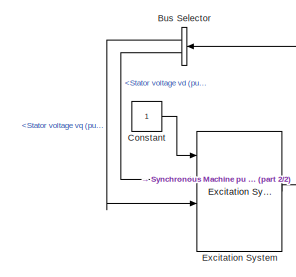
[diagram: root canvas - part 1/2, top left region]
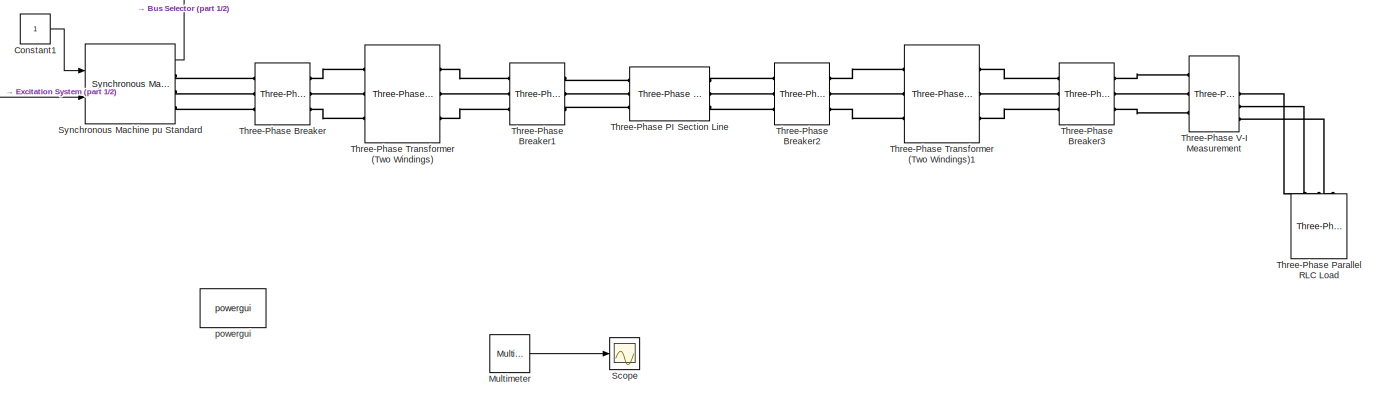
[diagram: root canvas - part 2/2, most of the canvas]
MODEL slx_87981afc190c
KIND model
BLOCK [BusSelector] Bus Selector
  OutputSignals = dq0 components.Stator voltage  vq (pu),dq0 components.Stator voltage  vd (pu)
  Ports = [1, 2]
BLOCK [Constant] Constant
BLOCK [Constant] Constant1
BLOCK [Reference] Excitation System  REF=sps_avr/Excitation System
  Ports = [4, 1]
  SourceBlock = sps_avr/Excitation System
  SourceType = Excitation System
  damp = [ 0.001, 0.1 ]
  exc = [ 1, 0 ]
  lim = [ -11.5, 11.5, 0 ]
  reg = [ 300, 0.001 ]
  sat = [ 0, 0 ]
  tgr = [ 0, 0 ]
  tr = 20e-3
  v0 = [1.0  1.28]
BLOCK [Reference] Multimeter  REF=powerlib/Measurements/Multimeter
  AxesSetting = [0,0.1,-100,100]
  Display = 1
  Gain = [1 1 1 1 1 1]
  L = 6
  OutputType = Magnitude
  PSBOutputType = 1
  PSBequivalent = 0
  PhasorSimulation = on
  Ports = [0, 1, 0, 0, 0, 1]
  SavedBlockNames = -11
  SourceBlock = powerlib/Measurements/Multimeter
  SourceType = MultimeterPSB
  sel = [1 2 3 4 5 6]
  yselected = {'Uag: Three-Phase Parallel RLC Load','Ubg: Three-Phase Parallel RLC Load','Ucg: Three-Phase Parallel RLC Load','Iag: Three-Phase Parallel RLC Load','Ibg: Three-Phase Parallel RLC Load','Icg: Three-Phase Parallel RLC Load'};
BLOCK [Scope] Scope
  DataFormat = StructureWithTime
  Floating = off
  NumInputPorts = 1
  Ports = [1]
  SampleTime = 0
  ShowLegends = off
BLOCK [Reference] Synchronous Machine pu Standard  REF=powerlib/Machines/Synchronous Machine
pu Standard
  BusType = swing
  InitialConditions = [ 0  0  0  0  0  0  0  0  1 ]
  IterativeModel = Trapezoidal non iterative
  LoadFlowParameters = [1,0,0,0,0]
  Mechanical = [ 3.7 0 20 ]
  MechanicalLoad = Mechanical power Pm
  NominalParameters = [ 30E6  138000   60]
  PLF = 0
  PolePairs = 20
  Ports = [2, 1, 0, 0, 0, 0, 3]
  Pref = 0
  PresetModel = No
  QLF = 0
  Qmax = inf
  Qmin = -inf
  Qref = 0
  Reactances1 = [ 1.81, 0.3, 0.23, 1.76, 0.65, 0.25, 0.15 ]
  Reactances2 = [ 1.305, 0.296, 0.252, 0.474,  0.243,  0.1 ]
  RotorType = Salient-pole
  Saturation = [0.6404,0.7127,0.8441,0.9214,0.9956,1.082,1.19,1.316,1.457;0.7,0.7698,0.8872,0.9466,0.9969,1.046,1.1,1.151,1.201]
  SetSaturation = off
  ShowDetailedParameters = on
  SourceBlock = powerlib/Machines/Synchronous Machine\npu Standard
  SourceType = Synchronous Machine
  StatorResistance = 0.003
  TimeConstants1 = [ 4.4849  0.0681  0.1  ]
  TimeConstants2 = [ 8.0, 0.03, 1.0, 0.07 ]
  TimeConstants3 = [  4.49  0.0681  0.0513  ]
  TimeConstants4 = [ 8.0, 0.03, 0.3371, 0.0295 ]
  TimeConstants5 = [ 1.01, 0.053, 0.1 ]
  TimeConstants6 = [ 1.3201, 0.023, 1.0, 0.07 ]
  TimeConstants7 = [0.012 0.003 0.003]
  TimeConstants8 = [ 1.3201, 0.0231, 0.3371, 0.0295 ]
  TsBlock = -1
  TsPowergui = 0
  Units = per unit standard parameters
  dAxisTimeConstants = Open-circuit
  qAxisTimeConstants = Short-circuit
BLOCK [Reference] Three-Phase Breaker  REF=powerlib/Elements/Three-Phase Breaker
  BreakerResistance = 0.001
  External = off
  InitialState = closed
  Measurements = None
  Ports = [0, 0, 0, 0, 0, 3, 3]
  SnubberCapacitance = inf
  SnubberResistance = 1e6
  SourceBlock = powerlib/Elements/Three-Phase Breaker
  SourceType = Three-Phase Breaker
  SwitchA = on
  SwitchB = on
  SwitchC = on
  SwitchTimes = [0.05  0.06]
BLOCK [Reference] Three-Phase Breaker1  REF=powerlib/Elements/Three-Phase Breaker
  BreakerResistance = 0.001
  External = off
  InitialState = closed
  Measurements = None
  Ports = [0, 0, 0, 0, 0, 3, 3]
  SnubberCapacitance = inf
  SnubberResistance = 1e6
  SourceBlock = powerlib/Elements/Three-Phase Breaker
  SourceType = Three-Phase Breaker
  SwitchA = on
  SwitchB = on
  SwitchC = on
  SwitchTimes = [0.05  0.06]
BLOCK [Reference] Three-Phase Breaker2  REF=powerlib/Elements/Three-Phase Breaker
  BreakerResistance = 0.001
  External = off
  InitialState = closed
  Measurements = None
  Ports = [0, 0, 0, 0, 0, 3, 3]
  SnubberCapacitance = inf
  SnubberResistance = 1e6
  SourceBlock = powerlib/Elements/Three-Phase Breaker
  SourceType = Three-Phase Breaker
  SwitchA = on
  SwitchB = on
  SwitchC = on
  SwitchTimes = [0.05  0.06]
BLOCK [Reference] Three-Phase Breaker3  REF=powerlib/Elements/Three-Phase Breaker
  BreakerResistance = 0.001
  External = off
  InitialState = closed
  Measurements = None
  Ports = [0, 0, 0, 0, 0, 3, 3]
  SnubberCapacitance = inf
  SnubberResistance = 1e6
  SourceBlock = powerlib/Elements/Three-Phase Breaker
  SourceType = Three-Phase Breaker
  SwitchA = on
  SwitchB = on
  SwitchC = on
  SwitchTimes = [0.05  0.06]
BLOCK [Reference] Three-Phase PI Section Line  REF=powerlib/Elements/Three-Phase
PI Section Line
  AttributesFormatString = \n
  Capacitances = [12.74e-9 7.751e-9]
  Frequency = 60
  Inductances = [ 5.3e-3  4.1264e-3]
  LConnTagsString = a|b|c
  Length = 20
  Ports = [0, 0, 0, 0, 0, 3, 3]
  RConnTagsString = A|B|C
  Resistances = [ 0.2 0.3864]
  SourceBlock = powerlib/Elements/Three-Phase\nPI Section Line
  SourceType = Three-Phase PI Section Line
BLOCK [Reference] Three-Phase Parallel RLC Load  REF=powerlib/Elements/Three-Phase
Parallel RLC Load
  ActivePower = 16e6
  AttributesFormatString = \n
  CapacitivePower = 0
  Configuration = Y (grounded)
  InductivePower = 12e6
  LConnTagsString = A|B|C
  LoadType = constant Z
  Measurements = Branch voltages and currents
  NominalFrequency = 60
  NominalVoltage = 13800
  Ports = [0, 0, 0, 0, 0, 3]
  SourceBlock = powerlib/Elements/Three-Phase\nParallel RLC Load
  SourceType = Three-Phase Parallel RLC Load
BLOCK [Reference] Three-Phase Transformer (Two Windings)  REF=powerlib/Elements/Three-Phase
Transformer
(Two Windings)
  BreakLoop = off
  DataFile = 'hysteresis'
  DataType = off
  Hysteresis = off
  InitialFluxes = [ 0.8 , -0.8 , 0.7 ]
  Lm = 500
  Measurements = None
  MoreParameters = off
  NominalPower = [ 20e6 , 60 ]
  Ports = [0, 0, 0, 0, 0, 3, 3]
  Rm = 500
  Saturation = [ 0,0 ; 0.0024,1.2 ; 1.0,1.52 ]
  SetInitialFlux = off
  SetSaturation = off
  SourceBlock = powerlib/Elements/Three-Phase\nTransformer\n(Two Windings)
  SourceType = Three-Phase Transformer (Two Windings)
  TransfoNumber = 1
  UNITS = pu
  Winding1 = [ 13.8e3 , 0.01 , 0 ]
  Winding1Connection = Delta (D1)
  Winding2 = [ 132e3 , 0.01 , 2.65e-4 ]
  Winding2Connection = Yg
BLOCK [Reference] Three-Phase Transformer (Two Windings)1  REF=powerlib/Elements/Three-Phase
Transformer
(Two Windings)
  BreakLoop = off
  DataFile = 'hysteresis'
  DataType = off
  Hysteresis = off
  InitialFluxes = [ 0.8 , -0.8 , 0.7 ]
  Lm = 500
  Measurements = None
  MoreParameters = off
  NominalPower = [ 20e6 , 60 ]
  Ports = [0, 0, 0, 0, 0, 3, 3]
  Rm = 500
  Saturation = [ 0,0 ; 0.0024,1.2 ; 1.0,1.52 ]
  SetInitialFlux = off
  SetSaturation = off
  SourceBlock = powerlib/Elements/Three-Phase\nTransformer\n(Two Windings)
  SourceType = Three-Phase Transformer (Two Windings)
  TransfoNumber = 1
  UNITS = pu
  Winding1 = [132e3 , 0.01 , 2.65e-4 ]
  Winding1Connection = Delta (D1)
  Winding2 = [ 13.8e3 , 0.01 , 0 ]
  Winding2Connection = Yg
BLOCK [Reference] Three-Phase V-I Measurement  REF=powerlib/Measurements/Three-Phase
V-I Measurement
  CurrentMeasurement = yes
  Ipu = off
  LabelI = Iabc
  LabelV = Vabc
  OutputType = Complex
  PSBequivalent = 0
  Pbase = 100e6
  PhasorSimulation = on
  Ports = [0, 2, 0, 0, 0, 3, 3]
  SetLabelI = off
  SetLabelV = off
  SourceBlock = powerlib/Measurements/Three-Phase\nV-I Measurement
  SourceType = Three-Phase VI Measurement
  Vbase = 500e3
  VoltageMeasurement = phase-to-ground
  Vpu = off
  VpuLL = off
BLOCK [Reference] powergui  REF=powerlib/powergui
  DisableRonSwitches = off
  DisableSnubberDevices = off
  DisableVfSwitches = off
  DisplayEquations = off
  DisplayStyle = 1
  EnableUseOfTLC = off
  ErrMax = 1e-4
  Frange = [0:2:500]
  FreqAxis = off
  FunctionMessages = off
  HookPort = off
  Interpol = off
  Iterations = 50
  MaxFrequency = 1000
  Pbase = 100e6
  Ports = []
  Priority = 1
  ResistiveCurrentMeasurement = off
  RestoreLinks = warning
  RmsSteady = 1
  SPID = off
  SampleTime = 50e-6
  ShowGrid = off
  SolverType = Tustin
  SourceBlock = powerlib/powergui
  SourceType = PSB option menu block
  StartTime = 0.0
  SwTol = 0
  Ts = 0
  UnitsV = kV
  UnitsW = MW
  UserDataPersistent = on
  Xlog = on
  Ylog = off
  ZoomFFT = off
  cycles = 1
  display = off
  echomessages = off
  frequency = 60
  frequencyindice = 60
  frequencyindicesteady = 1
  fundamental = 60
  methode = off
  save = off
  variable = ZData
  x0status = blocks
LINE Bus Selector:1 -> Excitation System:3
LINE Bus Selector:2 -> Excitation System:2
LINE Constant1:1 -> Synchronous Machine pu Standard:1
LINE Constant:1 -> Excitation System:1
LINE Excitation System:1 -> Synchronous Machine pu Standard:2
LINE Multimeter:1 -> Scope:1
LINE Synchronous Machine pu Standard:1 -> Bus Selector:1
PLINE Synchronous Machine pu Standard:RConn1 -- Three-Phase Breaker:LConn1
PLINE Synchronous Machine pu Standard:RConn2 -- Three-Phase Breaker:LConn2
PLINE Synchronous Machine pu Standard:RConn3 -- Three-Phase Breaker:LConn3
PLINE Three-Phase Breaker1:LConn1 -- Three-Phase Transformer (Two Windings):RConn1
PLINE Three-Phase Breaker1:LConn2 -- Three-Phase Transformer (Two Windings):RConn2
PLINE Three-Phase Breaker1:LConn3 -- Three-Phase Transformer (Two Windings):RConn3
PLINE Three-Phase Breaker1:RConn1 -- Three-Phase PI Section Line:LConn1
PLINE Three-Phase Breaker1:RConn2 -- Three-Phase PI Section Line:LConn2
PLINE Three-Phase Breaker1:RConn3 -- Three-Phase PI Section Line:LConn3
PLINE Three-Phase Breaker2:LConn1 -- Three-Phase PI Section Line:RConn1
PLINE Three-Phase Breaker2:LConn2 -- Three-Phase PI Section Line:RConn2
PLINE Three-Phase Breaker2:LConn3 -- Three-Phase PI Section Line:RConn3
PLINE Three-Phase Breaker2:RConn1 -- Three-Phase Transformer (Two Windings)1:LConn1
PLINE Three-Phase Breaker2:RConn2 -- Three-Phase Transformer (Two Windings)1:LConn2
PLINE Three-Phase Breaker2:RConn3 -- Three-Phase Transformer (Two Windings)1:LConn3
PLINE Three-Phase Breaker3:LConn1 -- Three-Phase Transformer (Two Windings)1:RConn1
PLINE Three-Phase Breaker3:LConn2 -- Three-Phase Transformer (Two Windings)1:RConn2
PLINE Three-Phase Breaker3:LConn3 -- Three-Phase Transformer (Two Windings)1:RConn3
PLINE Three-Phase Breaker3:RConn1 -- Three-Phase V-I Measurement:LConn1
PLINE Three-Phase Breaker3:RConn2 -- Three-Phase V-I Measurement:LConn2
PLINE Three-Phase Breaker3:RConn3 -- Three-Phase V-I Measurement:LConn3
PLINE Three-Phase Breaker:RConn1 -- Three-Phase Transformer (Two Windings):LConn1
PLINE Three-Phase Breaker:RConn2 -- Three-Phase Transformer (Two Windings):LConn2
PLINE Three-Phase Breaker:RConn3 -- Three-Phase Transformer (Two Windings):LConn3
PLINE Three-Phase Parallel RLC Load:LConn1 -- Three-Phase V-I Measurement:RConn1
PLINE Three-Phase Parallel RLC Load:LConn2 -- Three-Phase V-I Measurement:RConn2
PLINE Three-Phase Parallel RLC Load:LConn3 -- Three-Phase V-I Measurement:RConn3
